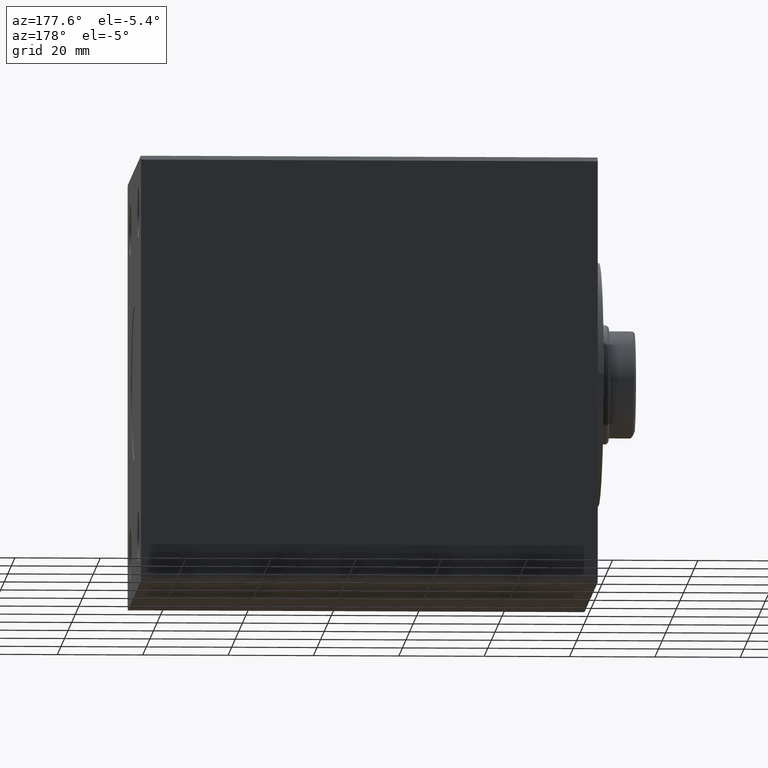
[diagram: clean part render]
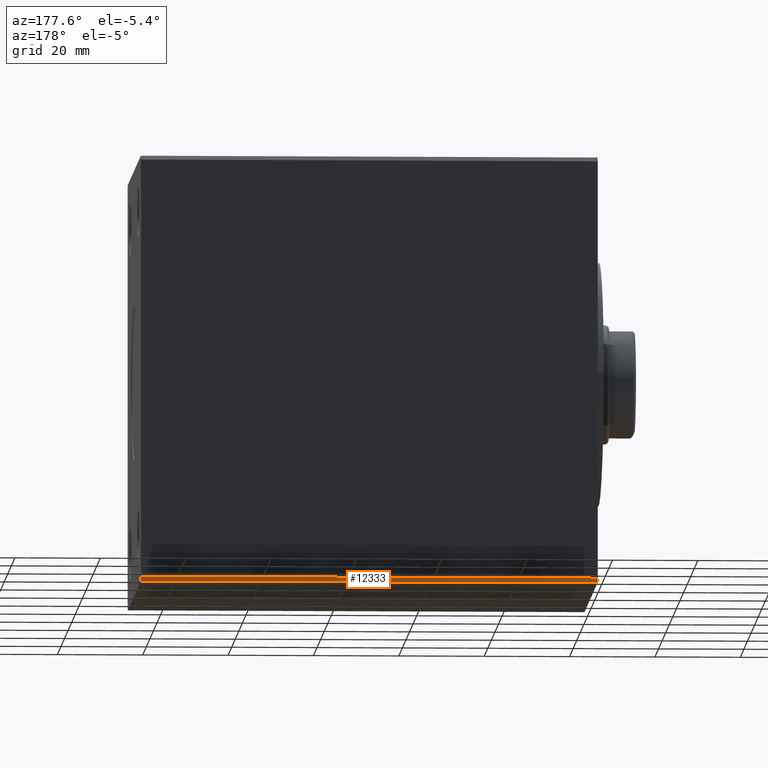
[diagram: same view with one face highlighted and labeled with its STEP entity id]
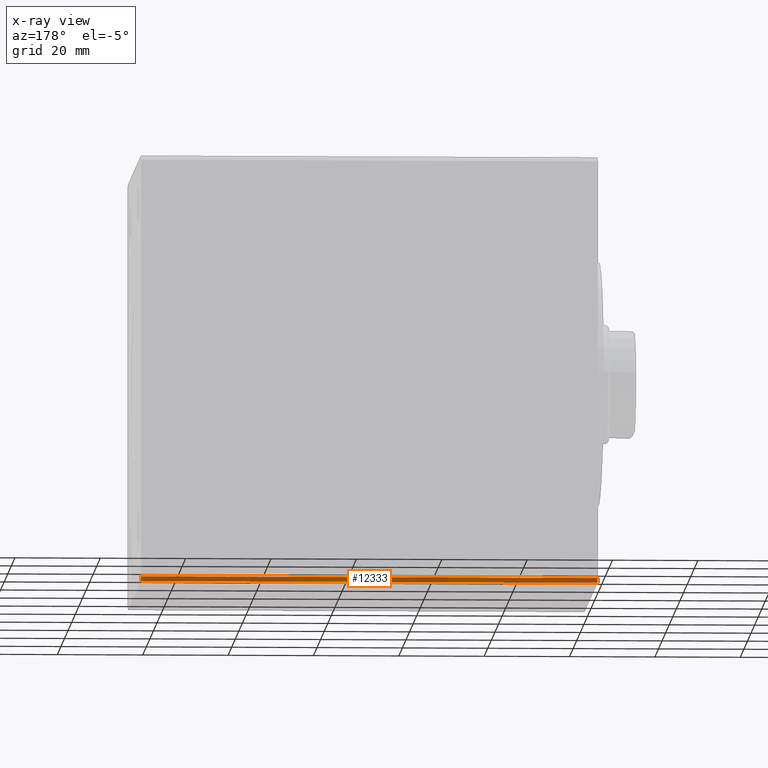
[diagram: x-ray of the same camera — body ghosted, the highlighted face saturated]
A machine part, auxiliary view. The second image highlights one B-rep face of the part: STEP entity #12333.
The next image is the same camera in x-ray: the body ghosted, the highlighted face saturated — about 0% of this face is hidden behind the body in this view.
In plain terms, the highlighted planar face has unit normal (0, -0.7071, 0.7071).
Its self-contained STEP definition (entity closure, byte-faithful):
#900 = EDGE_LOOP ( 'NONE', ( #5274, #39300, #24544, #28436 ) ) ;
#1505 = EDGE_CURVE ( 'NONE', #25152, #40806, #8200, .T. ) ;
#2282 = EDGE_CURVE ( 'NONE', #22825, #40806, #31912, .T. ) ;
#3708 = FACE_OUTER_BOUND ( 'NONE', #900, .T. ) ;
#4065 = LINE ( 'NONE', #20312, #43255 ) ;
#4447 = CARTESIAN_POINT ( 'NONE',  ( 107.0000000000000000, 37.50000000000000711, -49.00000000000000000 ) ) ;
#4751 = EDGE_CURVE ( 'NONE', #42167, #25152, #12243, .T. ) ;
#5274 = ORIENTED_EDGE ( 'NONE', *, *, #2282, .T. ) ;
#8200 = LINE ( 'NONE', #4447, #26945 ) ;
#10579 = DIRECTION ( 'NONE',  ( 0.000000000000000000, -0.7071067811865475727, 0.7071067811865475727 ) ) ;
#11314 = VECTOR ( 'NONE', #37936, 1000.000000000000114 ) ;
#12243 = LINE ( 'NONE', #38719, #28427 ) ;
#12333 = ADVANCED_FACE ( 'NONE', ( #3708 ), #27483, .F. ) ;
#16131 = CARTESIAN_POINT ( 'NONE',  ( 0.000000000000000000, 37.50000000000000711, -49.00000000000000000 ) ) ;
#20312 = CARTESIAN_POINT ( 'NONE',  ( 107.0000000000000000, 36.50000000000000711, -50.00000000000000000 ) ) ;
#21603 = CARTESIAN_POINT ( 'NONE',  ( 0.000000000000000000, 36.50000000000000711, -50.00000000000000000 ) ) ;
#21673 = CARTESIAN_POINT ( 'NONE',  ( 107.0000000000000000, 37.50000000000000711, -49.00000000000000000 ) ) ;
#21680 = CARTESIAN_POINT ( 'NONE',  ( 0.000000000000000000, 36.50000000000000711, -50.00000000000000000 ) ) ;
#22825 = VERTEX_POINT ( 'NONE', #21603 ) ;
#24155 = DIRECTION ( 'NONE',  ( 0.000000000000000000, -0.7071067811865474617, -0.7071067811865474617 ) ) ;
#24544 = ORIENTED_EDGE ( 'NONE', *, *, #4751, .F. ) ;
#25152 = VERTEX_POINT ( 'NONE', #21673 ) ;
#26399 = AXIS2_PLACEMENT_3D ( 'NONE', #41065, #10579, #24155 ) ;
#26945 = VECTOR ( 'NONE', #42039, 1000.000000000000000 ) ;
#27203 = DIRECTION ( 'NONE',  ( -1.000000000000000000, -0.000000000000000000, -0.000000000000000000 ) ) ;
#27483 = PLANE ( 'NONE',  #26399 ) ;
#28427 = VECTOR ( 'NONE', #36041, 1000.000000000000114 ) ;
#28436 = ORIENTED_EDGE ( 'NONE', *, *, #37395, .T. ) ;
#28926 = CARTESIAN_POINT ( 'NONE',  ( 107.0000000000000000, 36.50000000000000711, -50.00000000000000000 ) ) ;
#31912 = LINE ( 'NONE', #21680, #11314 ) ;
#36041 = DIRECTION ( 'NONE',  ( 0.000000000000000000, 0.7071067811865474617, 0.7071067811865474617 ) ) ;
#37395 = EDGE_CURVE ( 'NONE', #42167, #22825, #4065, .T. ) ;
#37936 = DIRECTION ( 'NONE',  ( 0.000000000000000000, 0.7071067811865474617, 0.7071067811865474617 ) ) ;
#38719 = CARTESIAN_POINT ( 'NONE',  ( 107.0000000000000000, 36.50000000000000711, -50.00000000000000000 ) ) ;
#39300 = ORIENTED_EDGE ( 'NONE', *, *, #1505, .F. ) ;
#40806 = VERTEX_POINT ( 'NONE', #16131 ) ;
#41065 = CARTESIAN_POINT ( 'NONE',  ( 107.0000000000000000, 36.50000000000000711, -50.00000000000000000 ) ) ;
#42039 = DIRECTION ( 'NONE',  ( -1.000000000000000000, -0.000000000000000000, -0.000000000000000000 ) ) ;
#42167 = VERTEX_POINT ( 'NONE', #28926 ) ;
#43255 = VECTOR ( 'NONE', #27203, 1000.000000000000000 ) ;